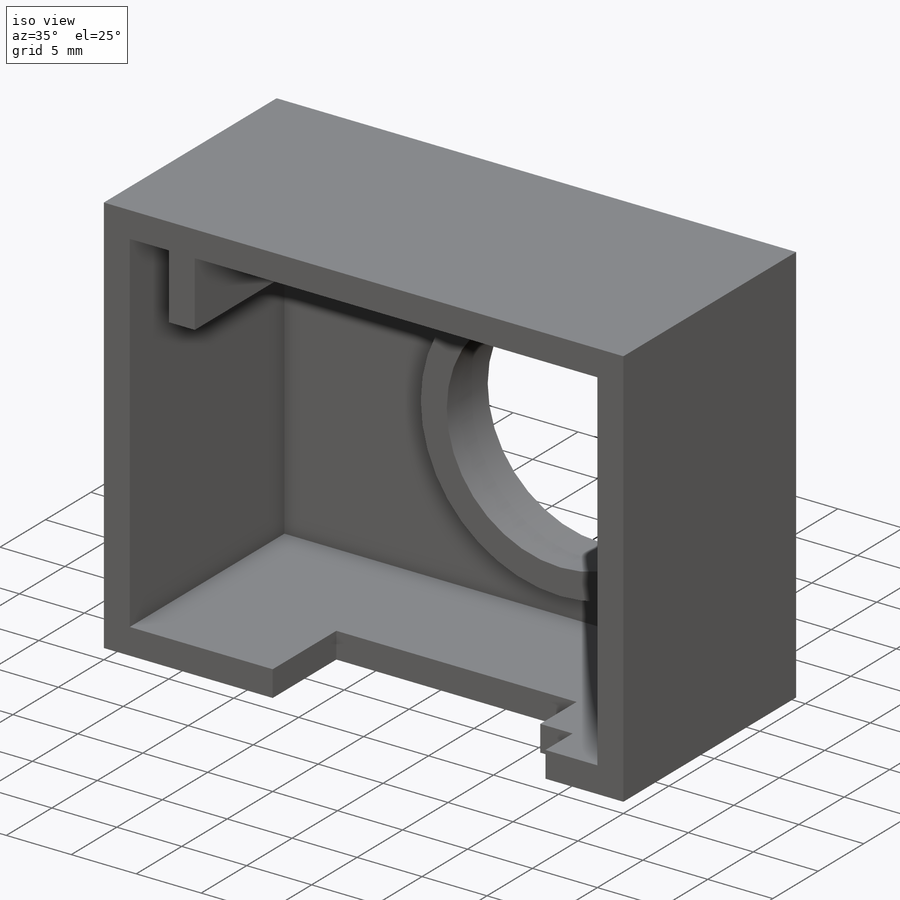
[diagram: iso view]
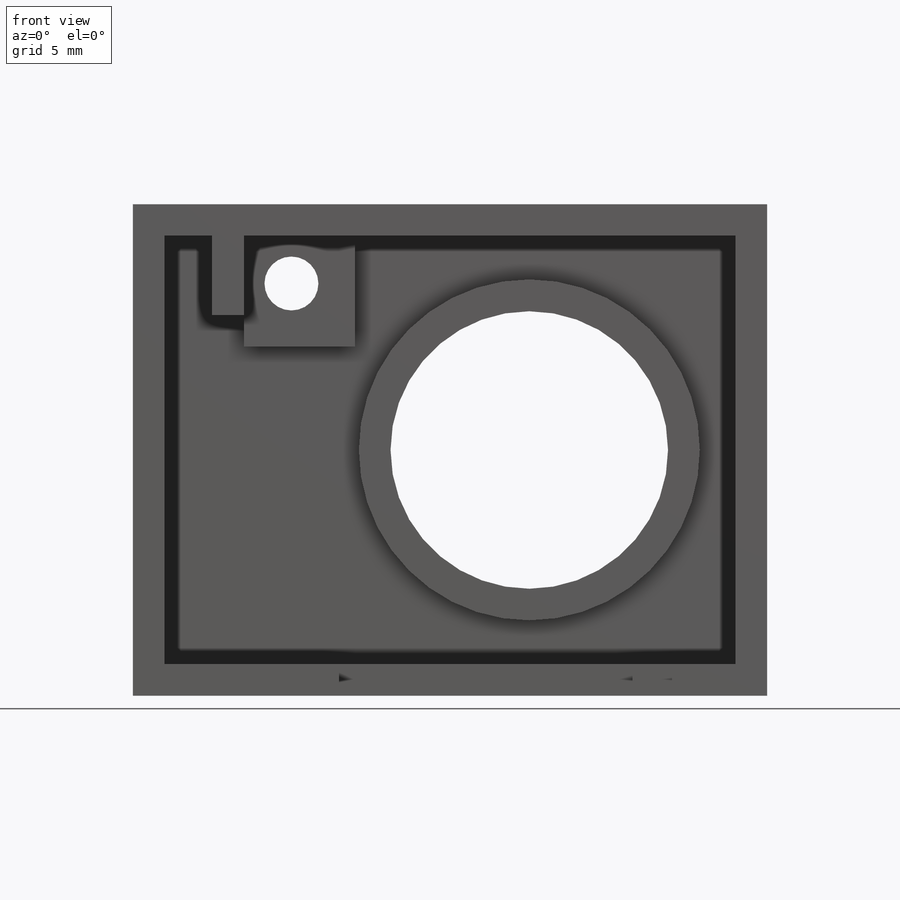
[diagram: front view]
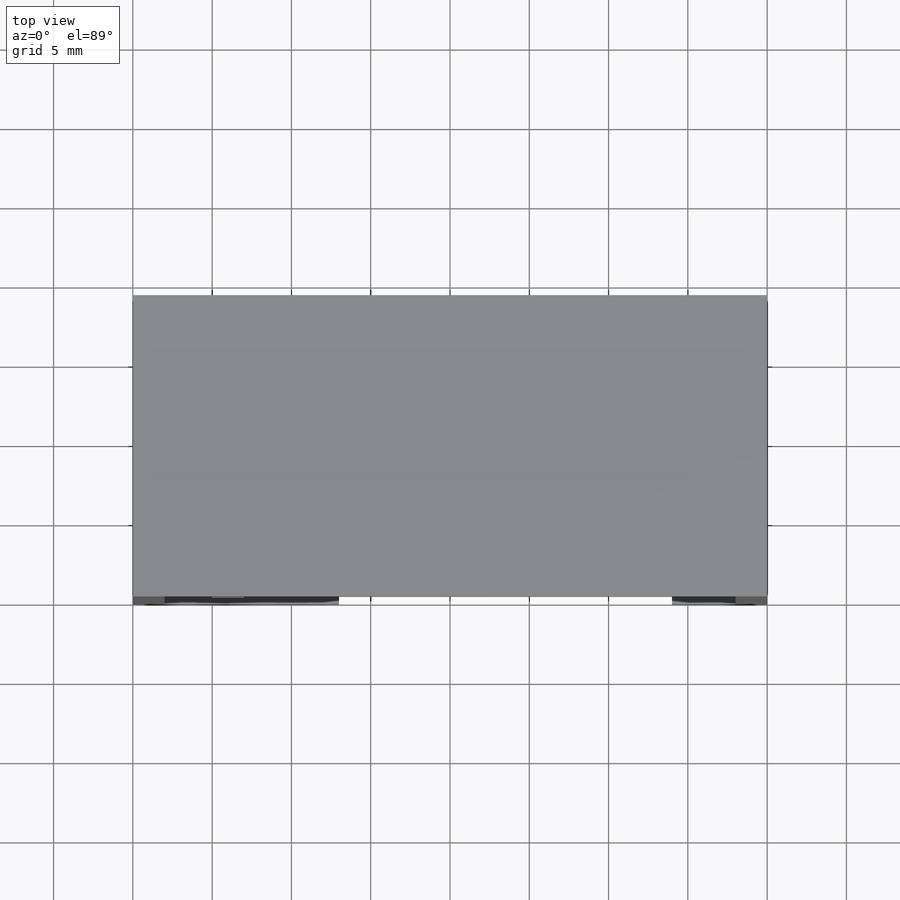
[diagram: top view]
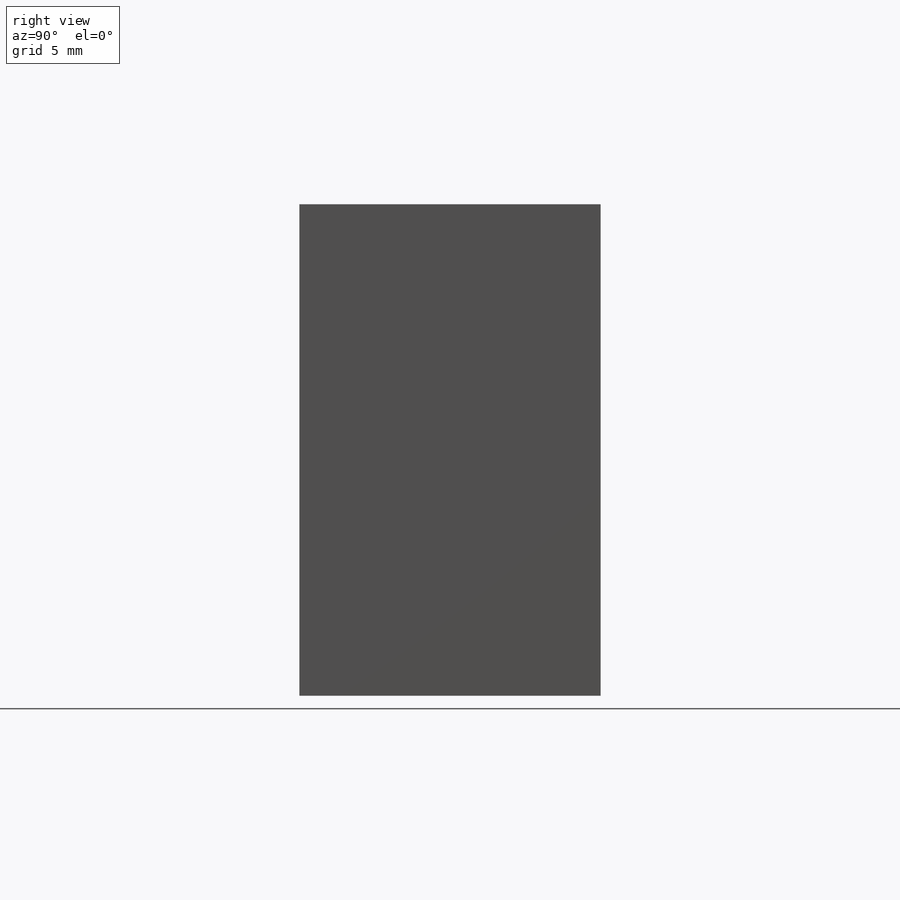
[diagram: right view]
SOLIDWORKS PART (.sldprt)
format: sldprt  version: not decoded by parser v0  size: 245,760 bytes
history: native  units: mm
features: sketch x7, extrude x3, cut_extrude x2, material x1, shell x1, hole x1 (+11 scaffold rows collapsed)
feature tree (26):
  scaffold x11  (default folders/planes/origin — collapsed)
  material  "Material <not specified>"
  sketch  "Sketch1"  dims[D1=17.5mm D2=40.0mm D3=31.0mm D4=25.0mm]
  extrude  "Boss-Extrude1"  Depth=19mm
  shell  "Shell1"  Thickness=2mm
  sketch  "Sketch2"
  cut_extrude  "Cut-Extrude1"  Depth=2.5mm
  sketch  "Sketch3"  dims[c1.D1=2.0mm c1.D2=5.0mm c1.D3=3.0mm c2.D1=2.0mm c2.D2=5.0mm c2.D3=3.0mm c3.D1=2.0mm c3.D2=5.0mm c3.D3=3.0mm]
  extrude  "Boss-Extrude2"  [1 undecoded]
  sketch  "Sketch8"  dims[D1=7.0mm D2=7.0mm]
  extrude  "Boss-Extrude3"  Depth=3mm
  hole  "CBORE for M3 SHCS1"  Diameter=3.4mm Depth=19mm
  sketch  "Sketch7"  dims[D1=3.0mm D2=3.0mm]
  sketch  "Sketch5"  dims[hole-wizard template sketch: 42 standard entries collapsed; hole parameters kept: c12.Thru Hole Depth=19.0mm c12.C'Bore Dia.=6.5mm c12.C'Bore Depth=3.0mm]
  sketch  "Sketch9"  dims[c1.D1=~28.781761mm c1.D2=13.0mm c1.D3=7.0mm c1.D4=8.5mm c2.D1=18.5mm c2.D5=6.0mm c2.D6=3.0mm c2.D7=2.5mm]
  cut_extrude  "Cut-Extrude3"  [1 undecoded]
decode coverage: 11 of 14 modeling features carry decoded parameters
note: ~ marks probable driven/reference dimensions
note: 2 parameter values undecoded
note: suppression state not decoded; provenance and decode notes live in map.json
